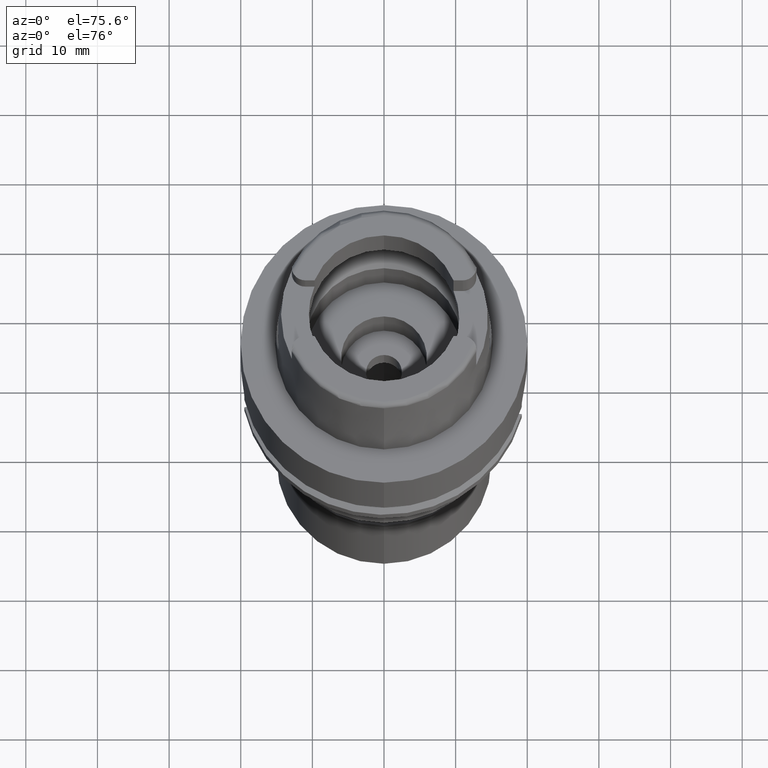
[diagram: clean part render]
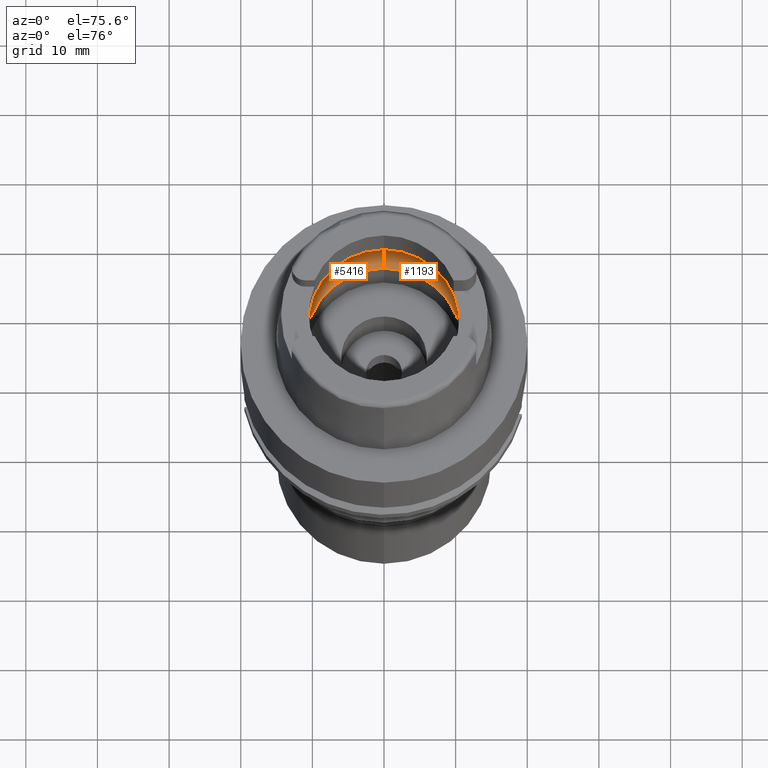
[diagram: same view with one multi-face feature highlighted, each face labeled with its STEP entity id]
A machine part, auxiliary view. The highlighted faces form ONE feature: a constant-radius fillet chain: 2 tangent blend faces with common blend radius 5 mm. The faces share edges in the B-rep.
Their STEP definitions:
[1] entity #1193 (Torus):
#47 = ORIENTED_EDGE ( 'NONE', *, *, #471, .F. ) ;
#194 = DIRECTION ( 'NONE',  ( 0.0000000000000000000, 0.0000000000000000000, -1.000000000000000000 ) ) ;
#364 = CARTESIAN_POINT ( 'NONE',  ( 0.0000000000000000000, 0.0000000000000000000, 0.05033650044220000508 ) ) ;
#471 = EDGE_CURVE ( 'NONE', #2837, #1486, #1507, .T. ) ;
#490 = CARTESIAN_POINT ( 'NONE',  ( 12.74455357708000136, 0.1165090171563999966, 3.700000000000000178 ) ) ;
#501 = ORIENTED_EDGE ( 'NONE', *, *, #3405, .F. ) ;
#580 = DIRECTION ( 'NONE',  ( -1.000000000000000000, 0.0000000000000000000, 0.0000000000000000000 ) ) ;
#598 = CARTESIAN_POINT ( 'NONE',  ( 0.0000000000000000000, -12.75000000000000000, 3.933312163512999504 ) ) ;
#639 = AXIS2_PLACEMENT_3D ( 'NONE', #4659, #3028, #898 ) ;
#641 = B_SPLINE_CURVE_WITH_KNOTS ( 'NONE', 3,
 ( #1806, #2669, #937, #4792, #2269, #3885 ),
 .UNSPECIFIED., .F., .F.,
 ( 4, 1, 1, 4 ),
 ( 0.0000000000000000000, 0.3333333333333000081, 0.6666666666667000474, 1.000000000000000000 ),
 .UNSPECIFIED. ) ;
#664 = CARTESIAN_POINT ( 'NONE',  ( 0.0000000000000000000, 12.75000000000000000, 3.933312163512999504 ) ) ;
#705 = ORIENTED_EDGE ( 'NONE', *, *, #1734, .F. ) ;
#827 = DIRECTION ( 'NONE',  ( 0.0000000000000000000, -1.000000000000000000, 0.0000000000000000000 ) ) ;
#898 = DIRECTION ( 'NONE',  ( 0.0000000000000000000, 1.000000000000000000, 0.0000000000000000000 ) ) ;
#937 = CARTESIAN_POINT ( 'NONE',  ( 12.74221194226999998, -0.3492494900268000024, 3.717724218997000118 ) ) ;
#995 = FACE_OUTER_BOUND ( 'NONE', #3057, .T. ) ;
#1062 = DIRECTION ( 'NONE',  ( 0.0000000000000000000, 0.6299999999999791322, -0.7765951326141738997 ) ) ;
#1193 = ADVANCED_FACE ( 'NONE', ( #995 ), #5374, .F. ) ;
#1226 = DIRECTION ( 'NONE',  ( 0.0000000000000000000, 0.0000000000000000000, -1.000000000000000000 ) ) ;
#1306 = CARTESIAN_POINT ( 'NONE',  ( 12.74455357708000136, 0.0000000000000000000, 3.700000000000000178 ) ) ;
#1333 = CARTESIAN_POINT ( 'NONE',  ( 12.74221164577000209, 0.3492612827266999842, 3.717726391320999912 ) ) ;
#1486 = VERTEX_POINT ( 'NONE', #5095 ) ;
#1495 = AXIS2_PLACEMENT_3D ( 'NONE', #3226, #1508, #1062 ) ;
#1507 = CIRCLE ( 'NONE', #2472, 12.75000000000000000 ) ;
#1508 = DIRECTION ( 'NONE',  ( 1.000000000000000000, 0.0000000000000000000, 0.0000000000000000000 ) ) ;
#1590 = CIRCLE ( 'NONE', #1495, 5.000000000000000888 ) ;
#1734 = EDGE_CURVE ( 'NONE', #1486, #4992, #2571, .T. ) ;
#1806 = CARTESIAN_POINT ( 'NONE',  ( 12.74455357708000136, 0.0000000000000000000, 3.700000000000000178 ) ) ;
#2221 = ORIENTED_EDGE ( 'NONE', *, *, #3031, .F. ) ;
#2266 = DIRECTION ( 'NONE',  ( 0.0000000000000000000, -0.6299999999999791322, -0.7765951326141738997 ) ) ;
#2269 = CARTESIAN_POINT ( 'NONE',  ( 12.71822740102000004, -0.9055573312621000293, 3.882617119810999995 ) ) ;
#2418 = ORIENTED_EDGE ( 'NONE', *, *, #2513, .F. ) ;
#2466 = CARTESIAN_POINT ( 'NONE',  ( 12.70998420979999999, -1.009356917307000057, 3.933312163512999504 ) ) ;
#2472 = AXIS2_PLACEMENT_3D ( 'NONE', #2628, #194, #3542 ) ;
#2513 = EDGE_CURVE ( 'NONE', #4992, #3547, #641, .T. ) ;
#2571 = B_SPLINE_CURVE_WITH_KNOTS ( 'NONE', 3,
 ( #2925, #4610, #4666, #1333, #490, #1306 ),
 .UNSPECIFIED., .F., .F.,
 ( 4, 1, 1, 4 ),
 ( 0.0000000000000000000, 0.3333333333333000081, 0.6666666666667000474, 1.000000000000000000 ),
 .UNSPECIFIED. ) ;
#2628 = CARTESIAN_POINT ( 'NONE',  ( 0.0000000000000000000, 0.0000000000000000000, 3.933312163512999504 ) ) ;
#2669 = CARTESIAN_POINT ( 'NONE',  ( 12.74455357708000136, -0.1165038148416000091, 3.700000000000000178 ) ) ;
#2744 = CARTESIAN_POINT ( 'NONE',  ( 0.0000000000000000000, 10.90000000000000036, 0.05033650044220000508 ) ) ;
#2837 = VERTEX_POINT ( 'NONE', #664 ) ;
#2906 = DIRECTION ( 'NONE',  ( 0.9968615066513449863, -0.07916524841627359255, 0.0000000000000000000 ) ) ;
#2925 = CARTESIAN_POINT ( 'NONE',  ( 12.70998420979999999, 1.009356917307000057, 3.933312163512999504 ) ) ;
#2931 = DIRECTION ( 'NONE',  ( 0.0000000000000000000, 0.0000000000000000000, 1.000000000000000000 ) ) ;
#2973 = CIRCLE ( 'NONE', #3684, 12.75000000000000000 ) ;
#3028 = DIRECTION ( 'NONE',  ( 0.0000000000000000000, 0.0000000000000000000, 1.000000000000000000 ) ) ;
#3031 = EDGE_CURVE ( 'NONE', #4266, #4844, #5353, .T. ) ;
#3057 = EDGE_LOOP ( 'NONE', ( #705, #47, #501, #2221, #3064, #3265, #2418 ) ) ;
#3062 = EDGE_CURVE ( 'NONE', #3547, #5304, #2973, .T. ) ;
#3064 = ORIENTED_EDGE ( 'NONE', *, *, #4807, .T. ) ;
#3226 = CARTESIAN_POINT ( 'NONE',  ( 0.0000000000000000000, 7.750000000000000000, 3.933312163512999504 ) ) ;
#3265 = ORIENTED_EDGE ( 'NONE', *, *, #3062, .F. ) ;
#3405 = EDGE_CURVE ( 'NONE', #4844, #2837, #1590, .T. ) ;
#3542 = DIRECTION ( 'NONE',  ( 0.0000000000000000000, 1.000000000000000000, 0.0000000000000000000 ) ) ;
#3547 = VERTEX_POINT ( 'NONE', #2466 ) ;
#3684 = AXIS2_PLACEMENT_3D ( 'NONE', #5005, #1226, #2906 ) ;
#3885 = CARTESIAN_POINT ( 'NONE',  ( 12.70998420979999999, -1.009356917307000057, 3.933312163512999504 ) ) ;
#3905 = CARTESIAN_POINT ( 'NONE',  ( 0.0000000000000000000, -7.750000000000000000, 3.933312163512999504 ) ) ;
#4266 = VERTEX_POINT ( 'NONE', #5421 ) ;
#4309 = AXIS2_PLACEMENT_3D ( 'NONE', #364, #2931, #827 ) ;
#4410 = AXIS2_PLACEMENT_3D ( 'NONE', #3905, #580, #2266 ) ;
#4489 = CIRCLE ( 'NONE', #4410, 5.000000000000000888 ) ;
#4610 = CARTESIAN_POINT ( 'NONE',  ( 12.71822753198000022, 0.9055556822149001261, 3.882616314426999615 ) ) ;
#4637 = CARTESIAN_POINT ( 'NONE',  ( 12.74455357708000136, 0.0000000000000000000, 3.700000000000000178 ) ) ;
#4659 = CARTESIAN_POINT ( 'NONE',  ( 0.0000000000000000000, 0.0000000000000000000, 3.933312163512999504 ) ) ;
#4666 = CARTESIAN_POINT ( 'NONE',  ( 12.73125913416000010, 0.6899131154768000096, 3.796694836489999947 ) ) ;
#4792 = CARTESIAN_POINT ( 'NONE',  ( 12.73125904006000120, -0.6899171919978999146, 3.796695554555000296 ) ) ;
#4807 = EDGE_CURVE ( 'NONE', #4266, #5304, #4489, .T. ) ;
#4844 = VERTEX_POINT ( 'NONE', #2744 ) ;
#4992 = VERTEX_POINT ( 'NONE', #4637 ) ;
#5005 = CARTESIAN_POINT ( 'NONE',  ( 0.0000000000000000000, 0.0000000000000000000, 3.933312163512999504 ) ) ;
#5095 = CARTESIAN_POINT ( 'NONE',  ( 12.70998420979999999, 1.009356917307000057, 3.933312163512999504 ) ) ;
#5304 = VERTEX_POINT ( 'NONE', #598 ) ;
#5353 = CIRCLE ( 'NONE', #4309, 10.90000000000000036 ) ;
#5374 = TOROIDAL_SURFACE ( 'NONE', #639, 7.750000000000000000, 5.000000000000000000 ) ;
#5421 = CARTESIAN_POINT ( 'NONE',  ( 0.0000000000000000000, -10.90000000000000036, 0.05033650044220000508 ) ) ;
[2] entity #5416 (Torus):
#107 = CIRCLE ( 'NONE', #716, 12.75000000000000533 ) ;
#241 = ORIENTED_EDGE ( 'NONE', *, *, #3620, .F. ) ;
#319 = CARTESIAN_POINT ( 'NONE',  ( -12.70998420979999999, 1.009356917307999923, 3.933312163512999504 ) ) ;
#330 = CARTESIAN_POINT ( 'NONE',  ( 0.0000000000000000000, 0.0000000000000000000, 3.933312163512999504 ) ) ;
#382 = CARTESIAN_POINT ( 'NONE',  ( -12.73125911061000082, 0.6899137000249000451, 3.796695002014000231 ) ) ;
#580 = DIRECTION ( 'NONE',  ( -1.000000000000000000, 0.0000000000000000000, 0.0000000000000000000 ) ) ;
#598 = CARTESIAN_POINT ( 'NONE',  ( 0.0000000000000000000, -12.75000000000000000, 3.933312163512999504 ) ) ;
#664 = CARTESIAN_POINT ( 'NONE',  ( 0.0000000000000000000, 12.75000000000000000, 3.933312163512999504 ) ) ;
#700 = AXIS2_PLACEMENT_3D ( 'NONE', #330, #1943, #2022 ) ;
#716 = AXIS2_PLACEMENT_3D ( 'NONE', #1657, #1318, #2993 ) ;
#795 = CIRCLE ( 'NONE', #700, 12.75000000000000000 ) ;
#830 = ORIENTED_EDGE ( 'NONE', *, *, #4807, .F. ) ;
#885 = VERTEX_POINT ( 'NONE', #4172 ) ;
#967 = CARTESIAN_POINT ( 'NONE',  ( 0.0000000000000000000, 0.0000000000000000000, 0.05033650044220000508 ) ) ;
#1004 = ORIENTED_EDGE ( 'NONE', *, *, #4351, .F. ) ;
#1030 = AXIS2_PLACEMENT_3D ( 'NONE', #967, #1914, #3551 ) ;
#1062 = DIRECTION ( 'NONE',  ( 0.0000000000000000000, 0.6299999999999791322, -0.7765951326141738997 ) ) ;
#1162 = CARTESIAN_POINT ( 'NONE',  ( -12.74455357708000136, 0.0000000000000000000, 3.700000000000000178 ) ) ;
#1318 = DIRECTION ( 'NONE',  ( 0.0000000000000000000, 0.0000000000000000000, -1.000000000000000000 ) ) ;
#1369 = CARTESIAN_POINT ( 'NONE',  ( -12.73125906335000046, -0.6899166332000999935, 3.796695391513999596 ) ) ;
#1495 = AXIS2_PLACEMENT_3D ( 'NONE', #3226, #1508, #1062 ) ;
#1508 = DIRECTION ( 'NONE',  ( 1.000000000000000000, 0.0000000000000000000, 0.0000000000000000000 ) ) ;
#1590 = CIRCLE ( 'NONE', #1495, 5.000000000000000888 ) ;
#1657 = CARTESIAN_POINT ( 'NONE',  ( 0.0000000000000000000, 0.0000000000000000000, 3.933312163512999504 ) ) ;
#1759 = B_SPLINE_CURVE_WITH_KNOTS ( 'NONE', 3,
 ( #1162, #3706, #4082, #382, #4947, #319 ),
 .UNSPECIFIED., .F., .F.,
 ( 4, 1, 1, 4 ),
 ( 0.0000000000000000000, 0.3333333333333000081, 0.6666666666667000474, 1.000000000000000000 ),
 .UNSPECIFIED. ) ;
#1909 = ORIENTED_EDGE ( 'NONE', *, *, #3227, .F. ) ;
#1914 = DIRECTION ( 'NONE',  ( 0.0000000000000000000, 0.0000000000000000000, 1.000000000000000000 ) ) ;
#1943 = DIRECTION ( 'NONE',  ( 0.0000000000000000000, 0.0000000000000000000, -1.000000000000000000 ) ) ;
#2012 = ORIENTED_EDGE ( 'NONE', *, *, #2229, .F. ) ;
#2022 = DIRECTION ( 'NONE',  ( 0.0000000000000000000, -1.000000000000000000, 0.0000000000000000000 ) ) ;
#2229 = EDGE_CURVE ( 'NONE', #4844, #4266, #4380, .T. ) ;
#2238 = CARTESIAN_POINT ( 'NONE',  ( -12.74455357708000136, -0.1165038350575000048, 3.700000000000000178 ) ) ;
#2266 = DIRECTION ( 'NONE',  ( 0.0000000000000000000, -0.6299999999999791322, -0.7765951326141738997 ) ) ;
#2314 = TOROIDAL_SURFACE ( 'NONE', #4242, 7.750000000000000000, 5.000000000000000000 ) ;
#2468 = CARTESIAN_POINT ( 'NONE',  ( -12.70998420979999999, -1.009356917307999923, 3.933312163512999504 ) ) ;
#2595 = VERTEX_POINT ( 'NONE', #4710 ) ;
#2744 = CARTESIAN_POINT ( 'NONE',  ( 0.0000000000000000000, 10.90000000000000036, 0.05033650044220000508 ) ) ;
#2837 = VERTEX_POINT ( 'NONE', #664 ) ;
#2993 = DIRECTION ( 'NONE',  ( -0.9968615066513395462, 0.07916524841634305087, 0.0000000000000000000 ) ) ;
#3226 = CARTESIAN_POINT ( 'NONE',  ( 0.0000000000000000000, 7.750000000000000000, 3.933312163512999504 ) ) ;
#3227 = EDGE_CURVE ( 'NONE', #3443, #885, #5033, .T. ) ;
#3405 = EDGE_CURVE ( 'NONE', #4844, #2837, #1590, .T. ) ;
#3436 = CARTESIAN_POINT ( 'NONE',  ( -12.74221193788999962, -0.3492495252689999941, 3.717724247871999843 ) ) ;
#3437 = FACE_OUTER_BOUND ( 'NONE', #4952, .T. ) ;
#3443 = VERTEX_POINT ( 'NONE', #2468 ) ;
#3485 = CARTESIAN_POINT ( 'NONE',  ( -12.70998420979999999, -1.009356917307999923, 3.933312163512999504 ) ) ;
#3551 = DIRECTION ( 'NONE',  ( 0.0000000000000000000, 1.000000000000000000, 0.0000000000000000000 ) ) ;
#3620 = EDGE_CURVE ( 'NONE', #885, #2595, #1759, .T. ) ;
#3706 = CARTESIAN_POINT ( 'NONE',  ( -12.74455357708000136, 0.1165089420520999813, 3.700000000000000178 ) ) ;
#3905 = CARTESIAN_POINT ( 'NONE',  ( 0.0000000000000000000, -7.750000000000000000, 3.933312163512999504 ) ) ;
#4082 = CARTESIAN_POINT ( 'NONE',  ( -12.74221165319000093, 0.3492611227261000484, 3.717726340176000122 ) ) ;
#4172 = CARTESIAN_POINT ( 'NONE',  ( -12.74455357708000136, 0.0000000000000000000, 3.700000000000000178 ) ) ;
#4212 = CARTESIAN_POINT ( 'NONE',  ( 0.0000000000000000000, 0.0000000000000000000, 3.933312163512999504 ) ) ;
#4242 = AXIS2_PLACEMENT_3D ( 'NONE', #4212, #4702, #5148 ) ;
#4266 = VERTEX_POINT ( 'NONE', #5421 ) ;
#4351 = EDGE_CURVE ( 'NONE', #5304, #3443, #795, .T. ) ;
#4380 = CIRCLE ( 'NONE', #1030, 10.90000000000000036 ) ;
#4410 = AXIS2_PLACEMENT_3D ( 'NONE', #3905, #580, #2266 ) ;
#4489 = CIRCLE ( 'NONE', #4410, 5.000000000000000888 ) ;
#4574 = EDGE_CURVE ( 'NONE', #2595, #2837, #107, .T. ) ;
#4698 = ORIENTED_EDGE ( 'NONE', *, *, #4574, .F. ) ;
#4702 = DIRECTION ( 'NONE',  ( 0.0000000000000000000, 0.0000000000000000000, 1.000000000000000000 ) ) ;
#4710 = CARTESIAN_POINT ( 'NONE',  ( -12.70998420979999999, 1.009356917307999923, 3.933312163512999504 ) ) ;
#4798 = ORIENTED_EDGE ( 'NONE', *, *, #3405, .T. ) ;
#4807 = EDGE_CURVE ( 'NONE', #4266, #5304, #4489, .T. ) ;
#4844 = VERTEX_POINT ( 'NONE', #2744 ) ;
#4947 = CARTESIAN_POINT ( 'NONE',  ( -12.71822751322999956, 0.9055559183389000344, 3.882616429747999920 ) ) ;
#4952 = EDGE_LOOP ( 'NONE', ( #1004, #830, #2012, #4798, #4698, #241, #1909 ) ) ;
#5033 = B_SPLINE_CURVE_WITH_KNOTS ( 'NONE', 3,
 ( #3485, #5146, #1369, #3436, #2238, #5118 ),
 .UNSPECIFIED., .F., .F.,
 ( 4, 1, 1, 4 ),
 ( 0.0000000000000000000, 0.3333333333333000081, 0.6666666666667000474, 1.000000000000000000 ),
 .UNSPECIFIED. ) ;
#5118 = CARTESIAN_POINT ( 'NONE',  ( -12.74455357708000136, 0.0000000000000000000, 3.700000000000000178 ) ) ;
#5146 = CARTESIAN_POINT ( 'NONE',  ( -12.71822741893999975, -0.9055571055671000069, 3.882617009583000378 ) ) ;
#5148 = DIRECTION ( 'NONE',  ( 0.0000000000000000000, 1.000000000000000000, 0.0000000000000000000 ) ) ;
#5304 = VERTEX_POINT ( 'NONE', #598 ) ;
#5416 = ADVANCED_FACE ( 'NONE', ( #3437 ), #2314, .F. ) ;
#5421 = CARTESIAN_POINT ( 'NONE',  ( 0.0000000000000000000, -10.90000000000000036, 0.05033650044220000508 ) ) ;